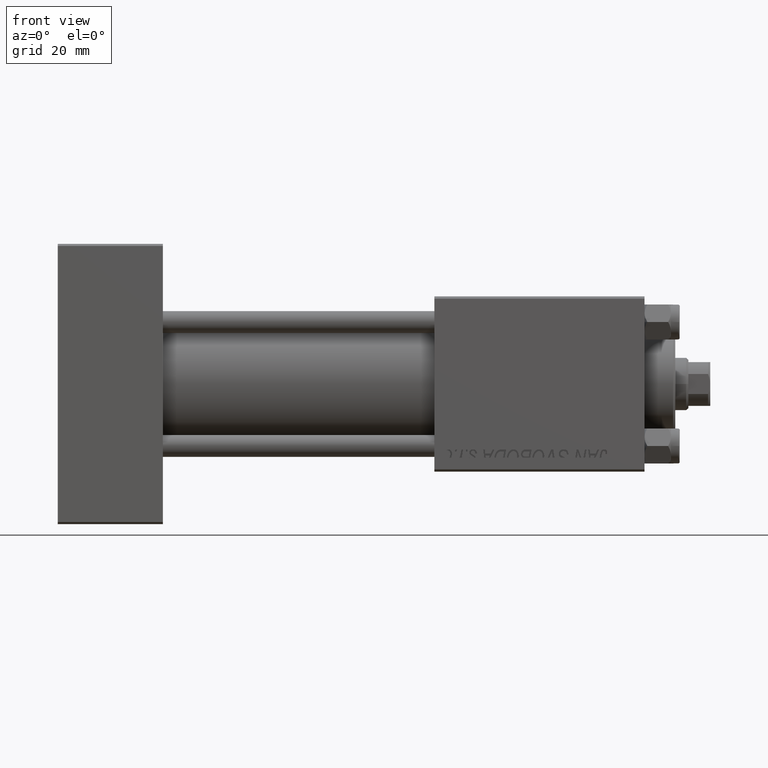
[diagram: clean part render]
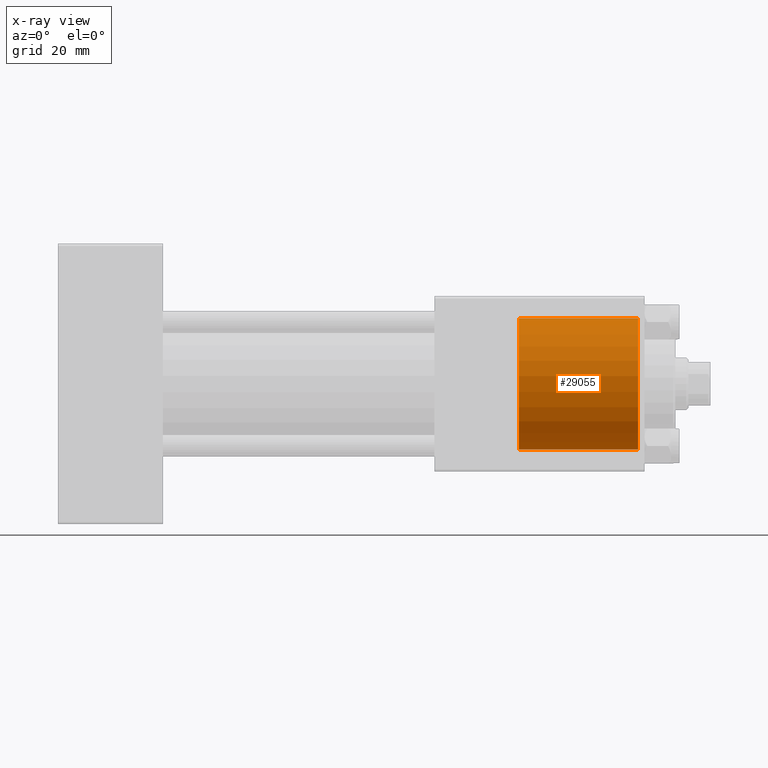
[diagram: x-ray — body ghosted, one internal face saturated and labeled with its STEP entity id]
A machine part, front view, then the same camera in x-ray: the body is ghosted and one INTERNAL B-rep face — a face not visible from any outside direction — is saturated and labeled: STEP entity #29055.
In plain terms, the highlighted cylindrical surface (partial cylindrical patch) has radius 15 mm, axis along (1, 0, 0).
Its self-contained STEP definition (entity closure, byte-faithful):
#1475 = DIRECTION ( 'NONE',  ( 1.000000000000000000, -0.000000000000000000, -0.000000000000000000 ) ) ;
#2006 = EDGE_LOOP ( 'NONE', ( #14649, #42370, #8287, #26961 ) ) ;
#4508 = VECTOR ( 'NONE', #36512, 1000.000000000000000 ) ;
#5428 = EDGE_CURVE ( 'NONE', #8991, #36327, #34252, .T. ) ;
#8287 = ORIENTED_EDGE ( 'NONE', *, *, #12586, .T. ) ;
#8991 = VERTEX_POINT ( 'NONE', #20933 ) ;
#9043 = CYLINDRICAL_SURFACE ( 'NONE', #12017, 15.00000000000000000 ) ;
#9651 = DIRECTION ( 'NONE',  ( 1.000000000000000000, -0.000000000000000000, -0.000000000000000000 ) ) ;
#12017 = AXIS2_PLACEMENT_3D ( 'NONE', #31007, #1475, #31510 ) ;
#12493 = VECTOR ( 'NONE', #9651, 1000.000000000000000 ) ;
#12586 = EDGE_CURVE ( 'NONE', #45387, #14390, #39230, .T. ) ;
#13455 = CARTESIAN_POINT ( 'NONE',  ( 132.5000000000000000, 1.836970198721029589E-15, 15.00000000000000000 ) ) ;
#14390 = VERTEX_POINT ( 'NONE', #44341 ) ;
#14649 = ORIENTED_EDGE ( 'NONE', *, *, #5428, .F. ) ;
#14703 = DIRECTION ( 'NONE',  ( 1.000000000000000000, 0.000000000000000000, 0.000000000000000000 ) ) ;
#16054 = EDGE_CURVE ( 'NONE', #36327, #14390, #32877, .T. ) ;
#20933 = CARTESIAN_POINT ( 'NONE',  ( 105.3000000000000114, 1.836970198721029589E-15, 15.00000000000000000 ) ) ;
#21062 = EDGE_CURVE ( 'NONE', #8991, #45387, #22074, .T. ) ;
#21570 = DIRECTION ( 'NONE',  ( 0.000000000000000000, 0.000000000000000000, 1.000000000000000000 ) ) ;
#22074 = LINE ( 'NONE', #37516, #4508 ) ;
#23124 = CARTESIAN_POINT ( 'NONE',  ( 132.5000000000000000, 0.000000000000000000, 0.000000000000000000 ) ) ;
#24789 = CARTESIAN_POINT ( 'NONE',  ( 105.3000000000000114, 0.000000000000000000, -15.00000000000000000 ) ) ;
#26961 = ORIENTED_EDGE ( 'NONE', *, *, #16054, .F. ) ;
#29055 = ADVANCED_FACE ( 'NONE', ( #35061 ), #9043, .F. ) ;
#29625 = CARTESIAN_POINT ( 'NONE',  ( 105.3000000000000114, 0.000000000000000000, 0.000000000000000000 ) ) ;
#31007 = CARTESIAN_POINT ( 'NONE',  ( 105.3000000000000114, 0.000000000000000000, 0.000000000000000000 ) ) ;
#31510 = DIRECTION ( 'NONE',  ( 0.000000000000000000, 0.000000000000000000, -1.000000000000000000 ) ) ;
#32877 = LINE ( 'NONE', #24789, #12493 ) ;
#34252 = CIRCLE ( 'NONE', #45564, 15.00000000000000000 ) ;
#34771 = DIRECTION ( 'NONE',  ( 1.000000000000000000, 0.000000000000000000, 0.000000000000000000 ) ) ;
#35061 = FACE_OUTER_BOUND ( 'NONE', #2006, .T. ) ;
#36327 = VERTEX_POINT ( 'NONE', #38282 ) ;
#36512 = DIRECTION ( 'NONE',  ( 1.000000000000000000, -0.000000000000000000, -0.000000000000000000 ) ) ;
#37516 = CARTESIAN_POINT ( 'NONE',  ( 105.3000000000000114, 1.836970198721029589E-15, 15.00000000000000000 ) ) ;
#38282 = CARTESIAN_POINT ( 'NONE',  ( 105.3000000000000114, 0.000000000000000000, -15.00000000000000000 ) ) ;
#39230 = CIRCLE ( 'NONE', #44894, 15.00000000000000000 ) ;
#41009 = DIRECTION ( 'NONE',  ( 0.000000000000000000, 0.000000000000000000, -1.000000000000000000 ) ) ;
#42370 = ORIENTED_EDGE ( 'NONE', *, *, #21062, .T. ) ;
#44341 = CARTESIAN_POINT ( 'NONE',  ( 132.5000000000000000, 0.000000000000000000, -15.00000000000000000 ) ) ;
#44894 = AXIS2_PLACEMENT_3D ( 'NONE', #23124, #34771, #21570 ) ;
#45387 = VERTEX_POINT ( 'NONE', #13455 ) ;
#45564 = AXIS2_PLACEMENT_3D ( 'NONE', #29625, #14703, #41009 ) ;